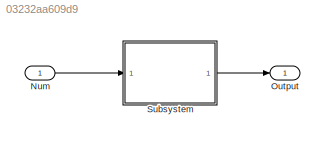
MODEL slx_03232aa609d9
KIND model
CONFIG AbsTol = auto
CONFIG EnableMultiTasking = off
CONFIG FixedStep = auto
CONFIG MaxStep = auto
CONFIG MinStep = auto
CONFIG RelTol = 1e-3
CONFIG SampleTimeConstraint = Unconstrained
CONFIG SolverName = VariableStepAuto
CONFIG StartTime = 0.0
CONFIG StopTime = 10.0
BLOCK [Inport] Num
BLOCK [Outport] Output
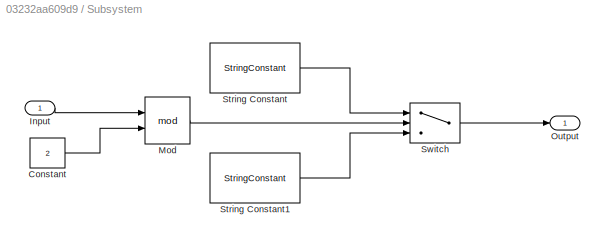
BLOCK [SubSystem] Subsystem
  Ports = [1, 1]
  RequestExecContextInheritance = off
BLOCK [Constant] Subsystem/Constant
  Value = 2
BLOCK [Inport] Subsystem/Input
BLOCK [Math] Subsystem/Mod
  Operator = mod
  Ports = [2, 1]
BLOCK [Outport] Subsystem/Output
BLOCK [StringConstant] Subsystem/String Constant
  String = "Odd"
BLOCK [StringConstant] Subsystem/String Constant1
  String = "Even"
BLOCK [Switch] Subsystem/Switch
  Criteria = u2 > Threshold
  InputSameDT = off
  SaturateOnIntegerOverflow = off
LINE Num:1 -> Subsystem:1
LINE Subsystem/Constant:1 -> Subsystem/Mod:2
LINE Subsystem/Input:1 -> Subsystem/Mod:1
LINE Subsystem/Mod:1 -> Subsystem/Switch:2
LINE Subsystem/String Constant1:1 -> Subsystem/Switch:3
LINE Subsystem/String Constant:1 -> Subsystem/Switch:1
LINE Subsystem/Switch:1 -> Subsystem/Output:1
LINE Subsystem:1 -> Output:1
